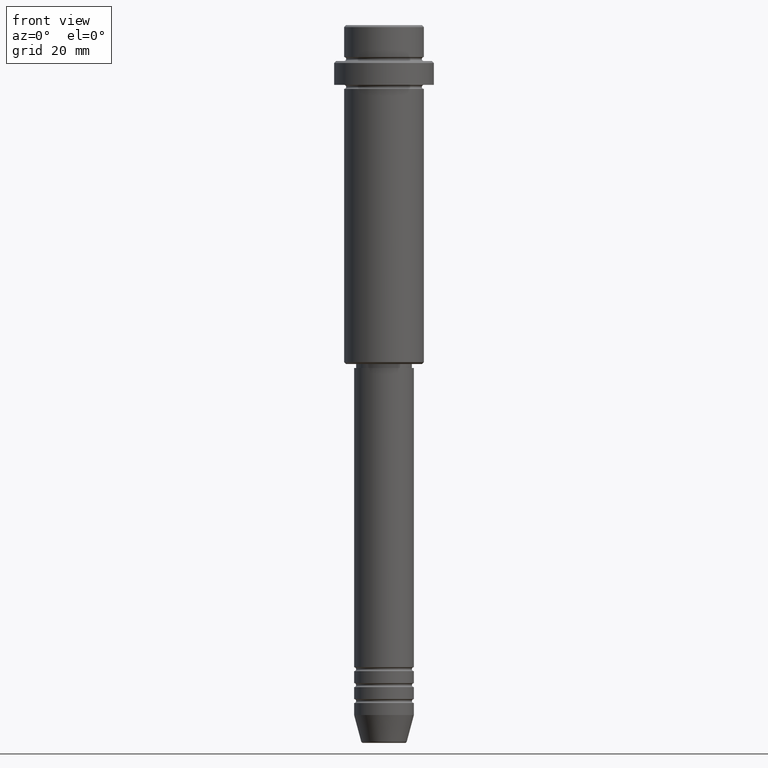
[diagram: clean part render]
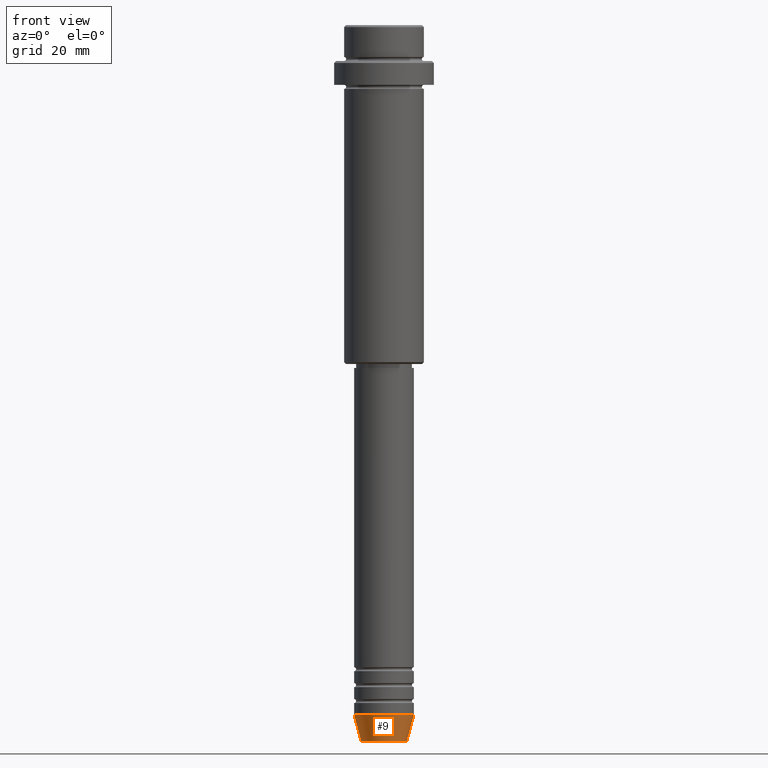
[diagram: same view with one face highlighted and labeled with its STEP entity id]
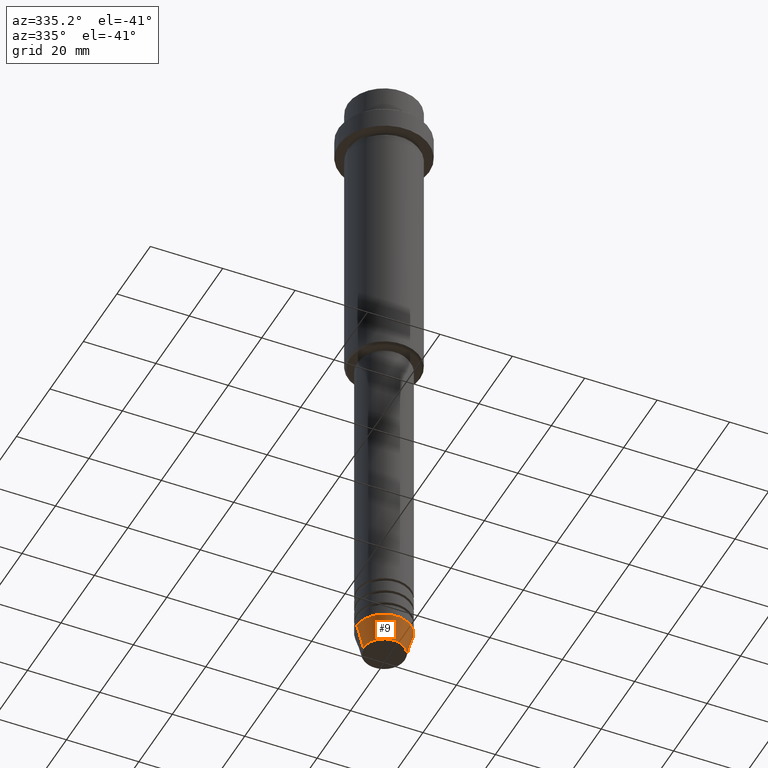
[diagram: same view with one face highlighted and labeled with its STEP entity id]
A machine part, front view. The second image highlights one B-rep face of the part: STEP entity #9.
A second angle (auxiliary view) of the same face is appended — the face is thin or edge-on in the first view.
In plain terms, the highlighted conical surface has half-angle 15 deg.
Its self-contained STEP definition (entity closure, byte-faithful):
#9 = ADVANCED_FACE ( 'NONE', ( #1400 ), #497, .T. ) ;
#67 = CIRCLE ( 'NONE', #320, 5.723655072137191269 ) ;
#96 = CARTESIAN_POINT ( 'NONE',  ( 0.000000000000000000, 0.000000000000000000, -173.0000000000000000 ) ) ;
#107 = DIRECTION ( 'NONE',  ( 1.000000000000000000, 0.000000000000000000, 0.000000000000000000 ) ) ;
#146 = CARTESIAN_POINT ( 'NONE',  ( 5.723655072137191269, 0.000000000000000000, -179.6294095225512422 ) ) ;
#297 = CARTESIAN_POINT ( 'NONE',  ( 0.000000000000000000, 0.000000000000000000, -173.0000000000000000 ) ) ;
#320 = AXIS2_PLACEMENT_3D ( 'NONE', #1293, #1197, #107 ) ;
#428 = CARTESIAN_POINT ( 'NONE',  ( -7.500000000000000000, 9.184850993605147944E-16, -173.0000000000000000 ) ) ;
#497 = CONICAL_SURFACE ( 'NONE', #1110, 7.500000000000000000, 0.2617993877991500740 ) ;
#502 = VERTEX_POINT ( 'NONE', #1347 ) ;
#514 = DIRECTION ( 'NONE',  ( -0.000000000000000000, -0.000000000000000000, 1.000000000000000000 ) ) ;
#579 = LINE ( 'NONE', #1239, #993 ) ;
#584 = DIRECTION ( 'NONE',  ( -0.2588190451025213501, 3.169619151431772337E-17, 0.9659258262890680902 ) ) ;
#610 = CARTESIAN_POINT ( 'NONE',  ( 7.500000000000000000, 0.000000000000000000, -173.0000000000000000 ) ) ;
#680 = ORIENTED_EDGE ( 'NONE', *, *, #1268, .T. ) ;
#721 = EDGE_CURVE ( 'NONE', #1396, #850, #930, .T. ) ;
#727 = ORIENTED_EDGE ( 'NONE', *, *, #721, .F. ) ;
#733 = AXIS2_PLACEMENT_3D ( 'NONE', #96, #514, #841 ) ;
#836 = DIRECTION ( 'NONE',  ( 0.2588190451025213501, 0.000000000000000000, 0.9659258262890680902 ) ) ;
#841 = DIRECTION ( 'NONE',  ( 1.000000000000000000, 0.000000000000000000, 0.000000000000000000 ) ) ;
#844 = DIRECTION ( 'NONE',  ( 1.000000000000000000, 0.000000000000000000, 0.000000000000000000 ) ) ;
#850 = VERTEX_POINT ( 'NONE', #1304 ) ;
#865 = EDGE_CURVE ( 'NONE', #502, #1015, #67, .T. ) ;
#930 = CIRCLE ( 'NONE', #733, 7.500000000000000000 ) ;
#993 = VECTOR ( 'NONE', #584, 1000.000000000000000 ) ;
#1015 = VERTEX_POINT ( 'NONE', #146 ) ;
#1038 = DIRECTION ( 'NONE',  ( -0.000000000000000000, -0.000000000000000000, 1.000000000000000000 ) ) ;
#1053 = VECTOR ( 'NONE', #836, 1000.000000000000000 ) ;
#1106 = EDGE_LOOP ( 'NONE', ( #1405, #1280, #680, #727 ) ) ;
#1110 = AXIS2_PLACEMENT_3D ( 'NONE', #297, #1038, #844 ) ;
#1150 = LINE ( 'NONE', #610, #1053 ) ;
#1180 = EDGE_CURVE ( 'NONE', #502, #1396, #579, .T. ) ;
#1197 = DIRECTION ( 'NONE',  ( -0.000000000000000000, -0.000000000000000000, 1.000000000000000000 ) ) ;
#1239 = CARTESIAN_POINT ( 'NONE',  ( -7.500000000000000000, 9.184850993605147944E-16, -173.0000000000000000 ) ) ;
#1268 = EDGE_CURVE ( 'NONE', #1015, #850, #1150, .T. ) ;
#1280 = ORIENTED_EDGE ( 'NONE', *, *, #865, .T. ) ;
#1293 = CARTESIAN_POINT ( 'NONE',  ( 0.000000000000000000, 0.000000000000000000, -179.6294095225512422 ) ) ;
#1304 = CARTESIAN_POINT ( 'NONE',  ( 7.500000000000000000, 0.000000000000000000, -173.0000000000000000 ) ) ;
#1347 = CARTESIAN_POINT ( 'NONE',  ( -5.723655072137191269, 8.097153428560735915E-16, -179.6294095225512422 ) ) ;
#1396 = VERTEX_POINT ( 'NONE', #428 ) ;
#1400 = FACE_OUTER_BOUND ( 'NONE', #1106, .T. ) ;
#1405 = ORIENTED_EDGE ( 'NONE', *, *, #1180, .F. ) ;